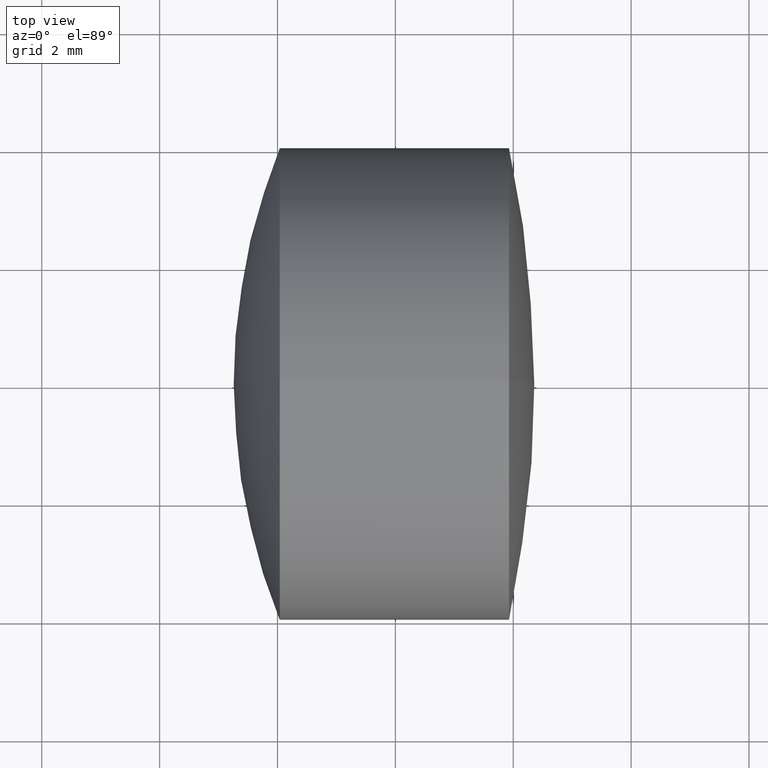
[diagram: clean part render]
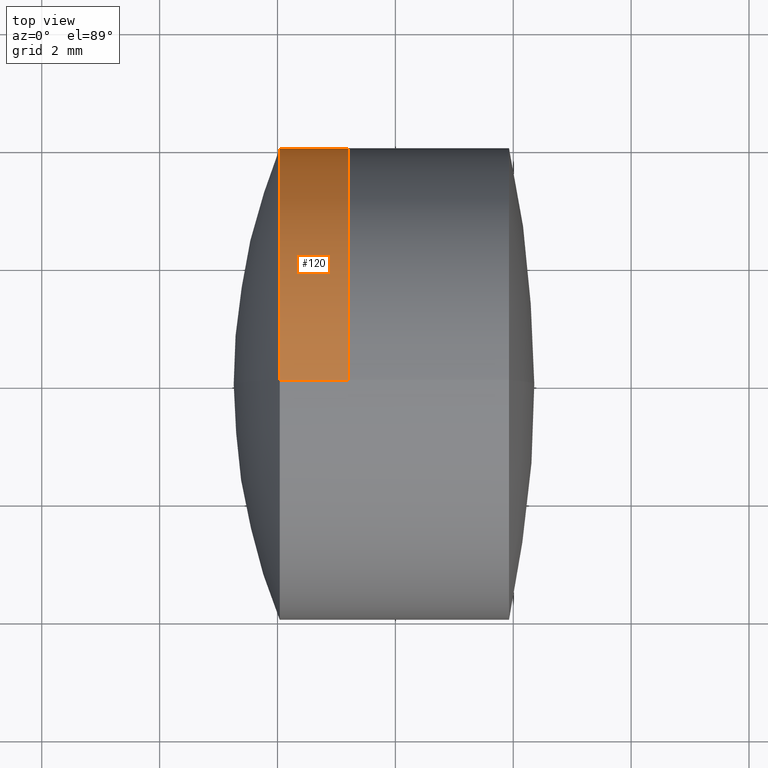
[diagram: same view with one face highlighted and labeled with its STEP entity id]
A machine part, top view. The second image highlights one B-rep face of the part: STEP entity #120.
In plain terms, the highlighted cylindrical surface (partial cylindrical patch) has radius 4 mm, axis along (-1, -0, -0).
Its self-contained STEP definition (entity closure, byte-faithful):
#7 = DIRECTION ( 'NONE',  ( 0.0000000000000000000, 0.0000000000000000000, 1.000000000000000000 ) ) ;
#18 = FACE_OUTER_BOUND ( 'NONE', #26, .T. ) ;
#26 = EDGE_LOOP ( 'NONE', ( #280, #121, #179, #341 ) ) ;
#36 = CARTESIAN_POINT ( 'NONE',  ( -0.8043704380087720600, 0.0000000000000000000, 0.0000000000000000000 ) ) ;
#37 = DIRECTION ( 'NONE',  ( 0.0000000000000000000, 0.0000000000000000000, 1.000000000000000000 ) ) ;
#38 = AXIS2_PLACEMENT_3D ( 'NONE', #41, #199, #7 ) ;
#41 = CARTESIAN_POINT ( 'NONE',  ( -1.962826851007154500, 0.0000000000000000000, 0.0000000000000000000 ) ) ;
#47 = VERTEX_POINT ( 'NONE', #270 ) ;
#50 = VERTEX_POINT ( 'NONE', #301 ) ;
#67 = DIRECTION ( 'NONE',  ( -1.000000000000000000, -0.0000000000000000000, -0.0000000000000000000 ) ) ;
#77 = CARTESIAN_POINT ( 'NONE',  ( -1.962826851007154500, 0.0000000000000000000, 3.999999999999998200 ) ) ;
#80 = EDGE_CURVE ( 'NONE', #222, #50, #153, .T. ) ;
#104 = LINE ( 'NONE', #300, #345 ) ;
#105 = EDGE_CURVE ( 'NONE', #47, #50, #234, .T. ) ;
#120 = ADVANCED_FACE ( 'NONE', ( #18 ), #122, .T. ) ;
#121 = ORIENTED_EDGE ( 'NONE', *, *, #105, .T. ) ;
#122 = CYLINDRICAL_SURFACE ( 'NONE', #123, 4.000000000000000000 ) ;
#123 = AXIS2_PLACEMENT_3D ( 'NONE', #161, #67, #37 ) ;
#126 = CIRCLE ( 'NONE', #311, 4.000000000000000000 ) ;
#153 = CIRCLE ( 'NONE', #38, 4.000000000000000000 ) ;
#161 = CARTESIAN_POINT ( 'NONE',  ( -9.702612178336682500, 0.0000000000000000000, 0.0000000000000000000 ) ) ;
#170 = VECTOR ( 'NONE', #244, 1000.000000000000000 ) ;
#172 = CARTESIAN_POINT ( 'NONE',  ( -9.702612178336682500, 4.898587196589412800E-016, -4.000000000000000000 ) ) ;
#179 = ORIENTED_EDGE ( 'NONE', *, *, #80, .F. ) ;
#199 = DIRECTION ( 'NONE',  ( -1.000000000000000000, -0.0000000000000000000, -0.0000000000000000000 ) ) ;
#208 = VERTEX_POINT ( 'NONE', #264 ) ;
#222 = VERTEX_POINT ( 'NONE', #77 ) ;
#234 = LINE ( 'NONE', #172, #170 ) ;
#236 = DIRECTION ( 'NONE',  ( -1.000000000000000000, -0.0000000000000000000, -0.0000000000000000000 ) ) ;
#244 = DIRECTION ( 'NONE',  ( -1.000000000000000000, -0.0000000000000000000, -0.0000000000000000000 ) ) ;
#255 = EDGE_CURVE ( 'NONE', #208, #222, #104, .T. ) ;
#264 = CARTESIAN_POINT ( 'NONE',  ( -0.8043704380087720600, 0.0000000000000000000, 4.000000000000000000 ) ) ;
#270 = CARTESIAN_POINT ( 'NONE',  ( -0.8043704380087720600, 4.898587196589412800E-016, -4.000000000000000000 ) ) ;
#280 = ORIENTED_EDGE ( 'NONE', *, *, #296, .T. ) ;
#296 = EDGE_CURVE ( 'NONE', #208, #47, #126, .T. ) ;
#300 = CARTESIAN_POINT ( 'NONE',  ( -9.702612178336682500, 0.0000000000000000000, 4.000000000000000000 ) ) ;
#301 = CARTESIAN_POINT ( 'NONE',  ( -1.962826851007154500, 4.898587196589411800E-016, -3.999999999999998200 ) ) ;
#311 = AXIS2_PLACEMENT_3D ( 'NONE', #36, #236, #331 ) ;
#331 = DIRECTION ( 'NONE',  ( 0.0000000000000000000, 0.0000000000000000000, 1.000000000000000000 ) ) ;
#336 = DIRECTION ( 'NONE',  ( -1.000000000000000000, -0.0000000000000000000, -0.0000000000000000000 ) ) ;
#341 = ORIENTED_EDGE ( 'NONE', *, *, #255, .F. ) ;
#345 = VECTOR ( 'NONE', #336, 1000.000000000000000 ) ;